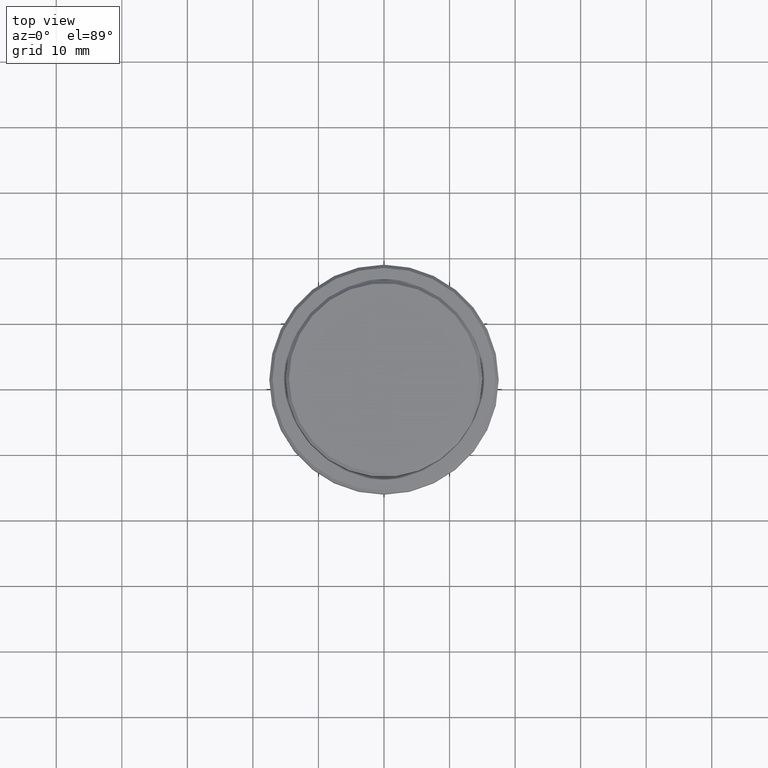
[diagram: clean part render]
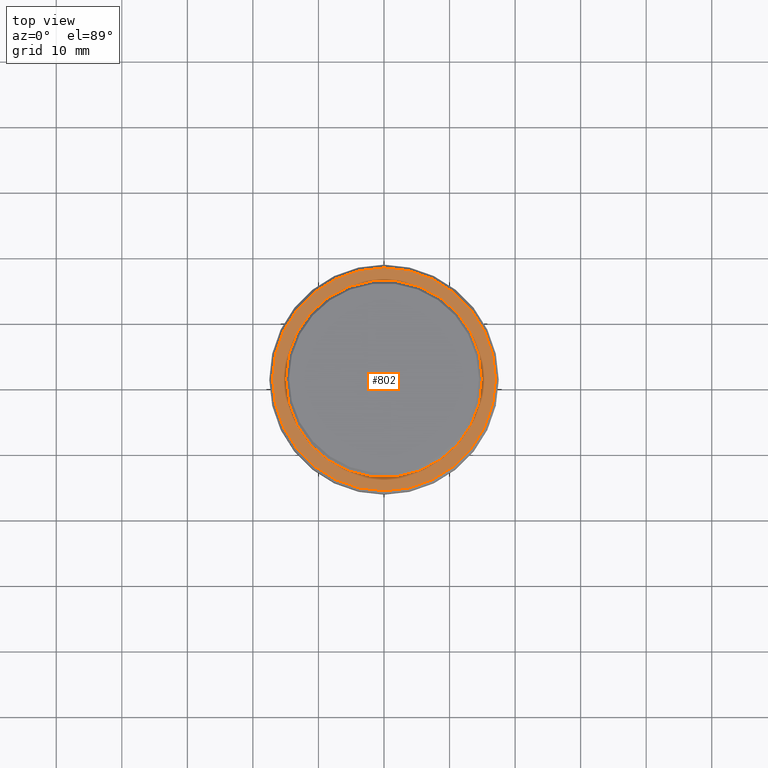
[diagram: same view with one face highlighted and labeled with its STEP entity id]
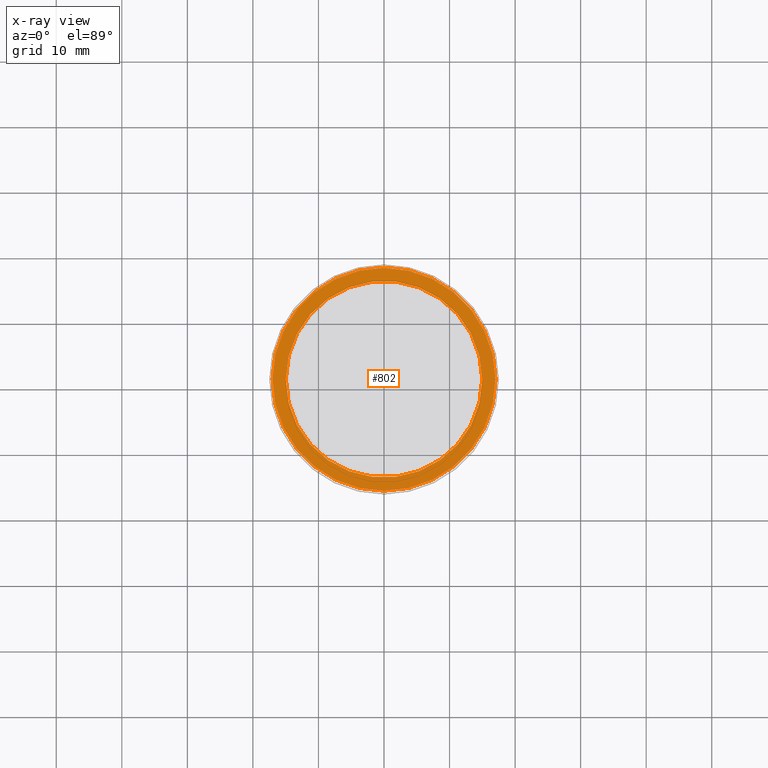
[diagram: x-ray of the same camera — body ghosted, the highlighted face saturated]
A machine part, top view. The second image highlights one B-rep face of the part: STEP entity #802.
The next image is the same camera in x-ray: the body ghosted, the highlighted face saturated — about 0% of this face is hidden behind the body in this view.
In plain terms, the highlighted planar face has unit normal (0, -0, 1).
Its self-contained STEP definition (entity closure, byte-faithful):
#58 = DIRECTION ( 'NONE',  ( 1.000000000000000000, 0.000000000000000000, 0.000000000000000000 ) ) ;
#67 = ORIENTED_EDGE ( 'NONE', *, *, #832, .T. ) ;
#73 = CARTESIAN_POINT ( 'NONE',  ( 0.000000000000000000, 0.000000000000000000, -9.000000000000000000 ) ) ;
#104 = AXIS2_PLACEMENT_3D ( 'NONE', #73, #1243, #1396 ) ;
#126 = ORIENTED_EDGE ( 'NONE', *, *, #259, .T. ) ;
#131 = VERTEX_POINT ( 'NONE', #1337 ) ;
#134 = CARTESIAN_POINT ( 'NONE',  ( 0.000000000000000000, 0.000000000000000000, -9.000000000000000000 ) ) ;
#137 = DIRECTION ( 'NONE',  ( 0.000000000000000000, 0.000000000000000000, -1.000000000000000000 ) ) ;
#167 = AXIS2_PLACEMENT_3D ( 'NONE', #1021, #373, #620 ) ;
#184 = ORIENTED_EDGE ( 'NONE', *, *, #1015, .T. ) ;
#255 = FACE_OUTER_BOUND ( 'NONE', #349, .T. ) ;
#259 = EDGE_CURVE ( 'NONE', #131, #498, #384, .T. ) ;
#349 = EDGE_LOOP ( 'NONE', ( #798, #126 ) ) ;
#367 = DIRECTION ( 'NONE',  ( 1.000000000000000000, 0.000000000000000000, 0.000000000000000000 ) ) ;
#373 = DIRECTION ( 'NONE',  ( -0.000000000000000000, -0.000000000000000000, 1.000000000000000000 ) ) ;
#384 = CIRCLE ( 'NONE', #1050, 16.99999999999997513 ) ;
#394 = DIRECTION ( 'NONE',  ( 1.000000000000000000, 0.000000000000000000, 0.000000000000000000 ) ) ;
#423 = CARTESIAN_POINT ( 'NONE',  ( -16.99999999999997513, 0.000000000000000000, -9.000000000000000000 ) ) ;
#477 = CARTESIAN_POINT ( 'NONE',  ( 0.000000000000000000, 14.49999999999999467, -9.000000000000000000 ) ) ;
#498 = VERTEX_POINT ( 'NONE', #423 ) ;
#507 = CIRCLE ( 'NONE', #1262, 14.99999999999999289 ) ;
#556 = CIRCLE ( 'NONE', #104, 14.99999999999999289 ) ;
#620 = DIRECTION ( 'NONE',  ( 1.000000000000000000, 0.000000000000000000, 0.000000000000000000 ) ) ;
#709 = DIRECTION ( 'NONE',  ( 0.000000000000000000, -0.000000000000000000, 1.000000000000000000 ) ) ;
#795 = EDGE_CURVE ( 'NONE', #498, #131, #815, .T. ) ;
#798 = ORIENTED_EDGE ( 'NONE', *, *, #795, .T. ) ;
#802 = ADVANCED_FACE ( 'NONE', ( #255, #1342 ), #820, .T. ) ;
#815 = CIRCLE ( 'NONE', #167, 16.99999999999997513 ) ;
#820 = PLANE ( 'NONE',  #1281 ) ;
#832 = EDGE_CURVE ( 'NONE', #1105, #1220, #507, .T. ) ;
#842 = CARTESIAN_POINT ( 'NONE',  ( -14.99999999999999289, 1.836970198721028800E-15, -9.000000000000000000 ) ) ;
#995 = EDGE_LOOP ( 'NONE', ( #67, #184 ) ) ;
#1015 = EDGE_CURVE ( 'NONE', #1220, #1105, #556, .T. ) ;
#1018 = CARTESIAN_POINT ( 'NONE',  ( 14.99999999999999289, 0.000000000000000000, -9.000000000000000000 ) ) ;
#1021 = CARTESIAN_POINT ( 'NONE',  ( 0.000000000000000000, 0.000000000000000000, -9.000000000000000000 ) ) ;
#1050 = AXIS2_PLACEMENT_3D ( 'NONE', #1199, #1269, #394 ) ;
#1105 = VERTEX_POINT ( 'NONE', #1018 ) ;
#1199 = CARTESIAN_POINT ( 'NONE',  ( 0.000000000000000000, 0.000000000000000000, -9.000000000000000000 ) ) ;
#1220 = VERTEX_POINT ( 'NONE', #842 ) ;
#1243 = DIRECTION ( 'NONE',  ( 0.000000000000000000, 0.000000000000000000, -1.000000000000000000 ) ) ;
#1262 = AXIS2_PLACEMENT_3D ( 'NONE', #134, #137, #367 ) ;
#1269 = DIRECTION ( 'NONE',  ( -0.000000000000000000, -0.000000000000000000, 1.000000000000000000 ) ) ;
#1281 = AXIS2_PLACEMENT_3D ( 'NONE', #477, #709, #58 ) ;
#1337 = CARTESIAN_POINT ( 'NONE',  ( 16.99999999999997513, 2.112515728529182883E-15, -9.000000000000000000 ) ) ;
#1342 = FACE_BOUND ( 'NONE', #995, .T. ) ;
#1396 = DIRECTION ( 'NONE',  ( 1.000000000000000000, 0.000000000000000000, 0.000000000000000000 ) ) ;